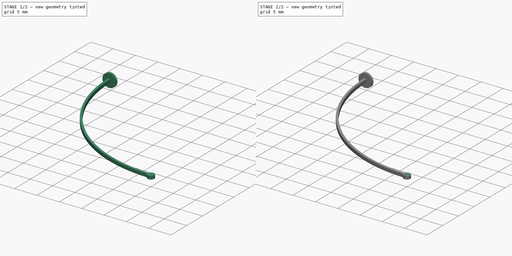
[diagram: build sequence overview — one tinted view per stage of 2, left to right]
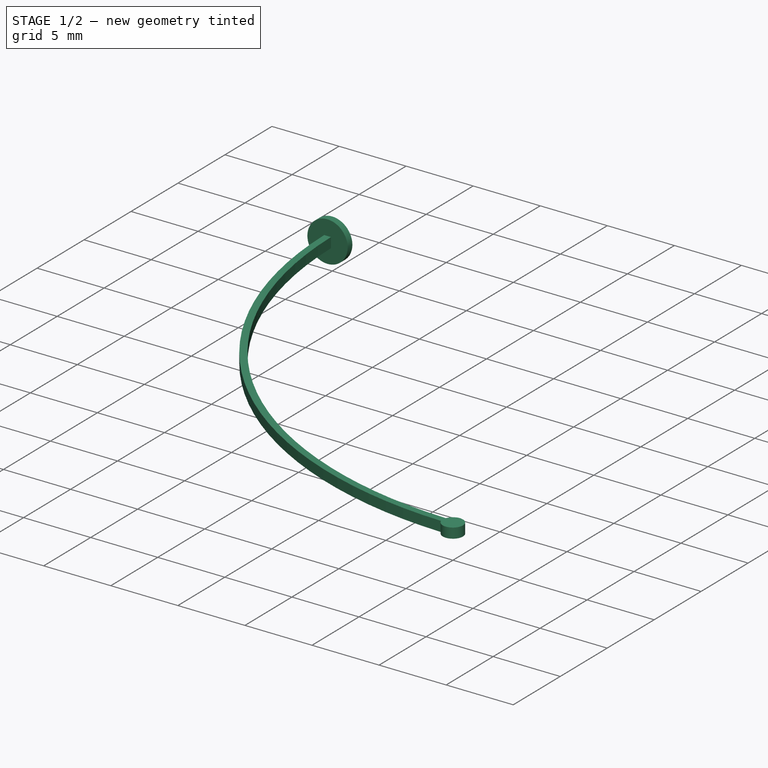
[diagram: stage 1 of 2 — iso view after this stage's code; geometry added in this stage tinted green]
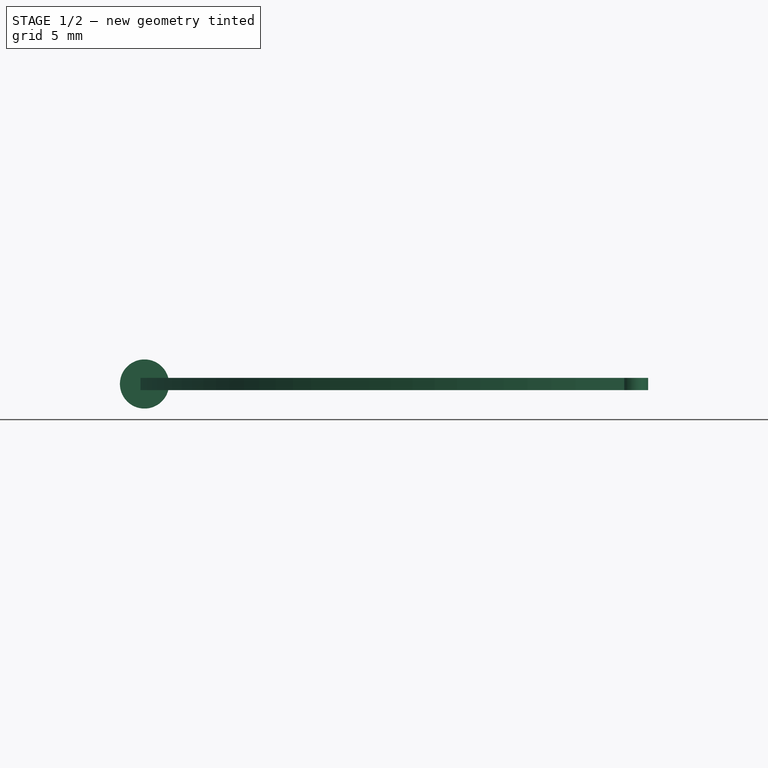
[diagram: stage 1 of 2 — front view after this stage's code; geometry added in this stage tinted green]
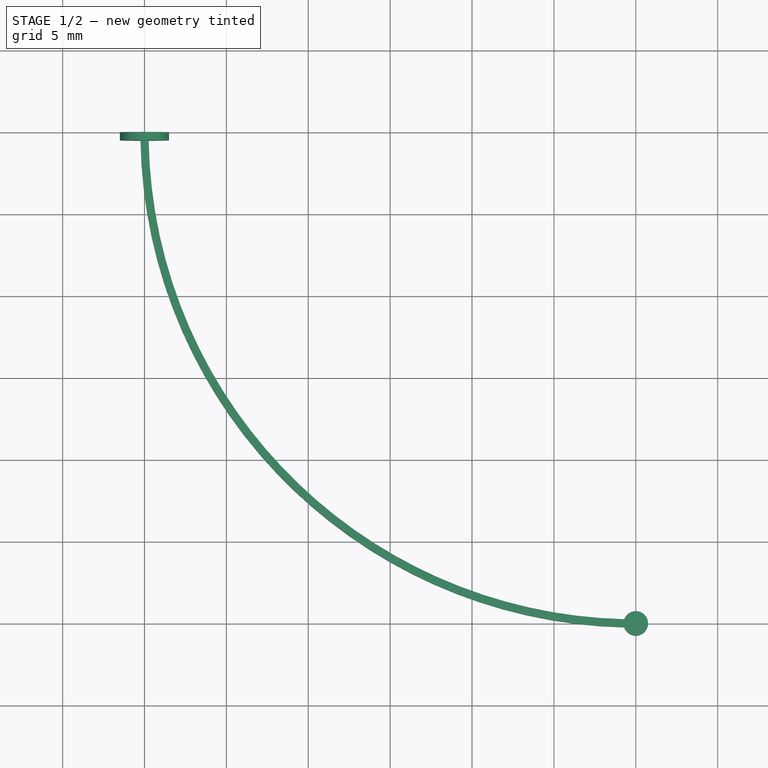
[diagram: stage 1 of 2 — top view after this stage's code; geometry added in this stage tinted green]
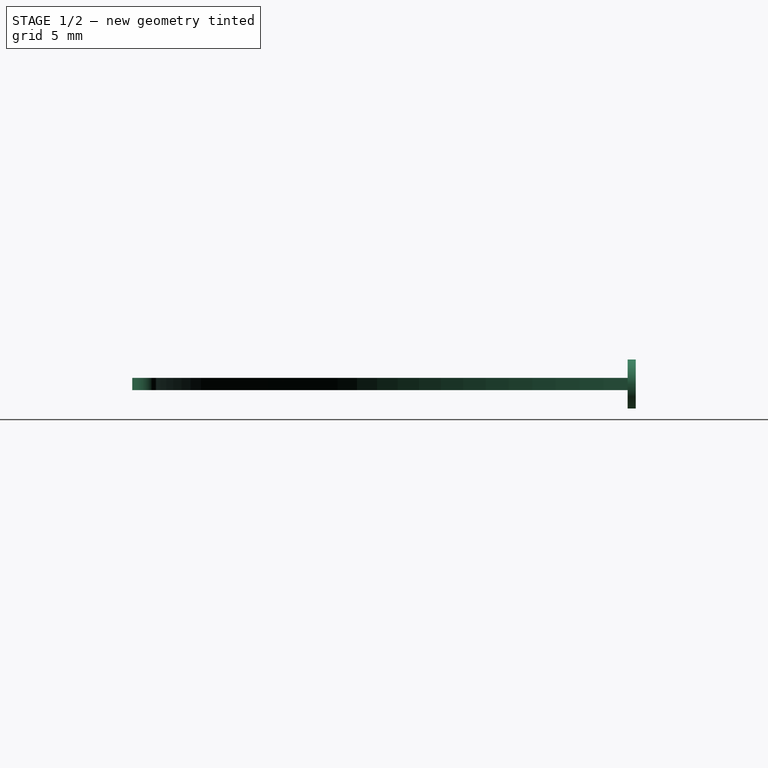
[diagram: stage 1 of 2 — right view after this stage's code; geometry added in this stage tinted green]
FCSTD DOCUMENT  (FreeCAD 0.20R29177 (Git))
Label: sla
License: All rights reserved
LicenseURL: http://en.wikipedia.org/wiki/All_rights_reserved
objects: Sketcher::SketchObject×2, PartDesign::Pad×2, PartDesign::Line×2, Spreadsheet::Sheet×1, PartDesign::Point×1, PartDesign::SubtractiveSphere×1, PartDesign::Body×1
note: 12 computed .brp shape members not serialized (recipe doc carries the construction recipe); baked Part::Feature solids carry a one-line shape summary decoded from their .brp

FEATURE [Spreadsheet::Sheet] Spreadsheet
  cells = A2=Design Parameters; A3=RefLength; B3(RefLength)==1mm; A4=ArmArcRadius; B4(ArmArcRadius)==30 * RefLength; A5=ArmWidth; B5(ArmWidth)==0.5 * RefLength; A6=ArmHeight; B6(ArmHeight)==0.75 * RefLength; A7=TipDatumPlaneOffsetX; B7(TipDatumPlaneOffsetX)==ArmArcRadius; A8=TipDatumPlaneOffsetY; B8(TipDatumPlaneOffsetY)==-ArmArcRadius; A9=ArmBaseDiameter; B9(ArmBaseDiameter)==3 * RefLength; A10=ArmBasePadLength; B10(ArmBasePadLength)==0.5 * RefLength; A11=BallDiameter; B11(BallDiameter)==1.25 * RefLength; A12=BallMargin; B12(BallMargin)==0.01 * RefLength; A13=BallCutoutDiameter; B13(BallCutoutDiameter)==BallDiameter + 2 * BallMargin; A14=BallDepth; B14(BallDepth)==0.25 * BallCutoutDiameter; A15=TipPlateDiameter; B15(TipPlateDiameter)==1.2 * BallDiameter; A16=TipPlateThickness; B16(TipPlateThickness)==ArmHeight; A17=BallCutoutCenterX; B17(BallCutoutCenterX)==ArmArcRadius; A18=BallCutoutCenterY; B18(BallCutoutCenterY)==-ArmArcRadius; A19=BallCutoutCenterZ; B19(BallCutoutCenterZ)==0.5 * ArmHeight + 0.5 * BallCutoutDiameter - BallDepth
FEATURE [Sketcher::SketchObject] Sketch  label="ArmSketch"
  FullyConstrained = true
  MapMode = 5
  Support = -> [XY_Plane]
  expr: Constraints[16] = Spreadsheet.ArmWidth
  expr: Constraints[26] = Spreadsheet.TipPlateDiameter
  expr: Constraints[9] = Spreadsheet.ArmArcRadius
  sketch-geometry (10):
    g0: LineSegment StartX=0 StartY=7.3e-15 StartZ=0 EndX=0 EndY=-30 EndZ=0
    g1: LineSegment StartX=0 StartY=-30 StartZ=0 EndX=30 EndY=-30 EndZ=0
    g2: LineSegment StartX=0 StartY=7.3e-15 StartZ=0 EndX=30 EndY=7.3e-15 EndZ=0
    g3: LineSegment StartX=30 StartY=7.3e-15 StartZ=0 EndX=30 EndY=-30 EndZ=0
    g4: ArcOfCircle CenterX=30 CenterY=7.3e-15 CenterZ=0 NormalX=0 NormalY=0 NormalZ=1 AngleXU=0 Radius=30 StartAngle=3.14159 EndAngle=4.71239
    g5: LineSegment StartX=-0.25 StartY=7.3e-15 StartZ=0 EndX=0 EndY=7.3e-15 EndZ=0
    g6: LineSegment StartX=0 StartY=7.3e-15 StartZ=0 EndX=0.25 EndY=7.3e-15 EndZ=0
    g7: ArcOfCircle CenterX=30 CenterY=7.3e-15 CenterZ=0 NormalX=0 NormalY=0 NormalZ=1 AngleXU=0 Radius=30.25 StartAngle=3.14159 EndAngle=4.68892
    g8: ArcOfCircle CenterX=30 CenterY=7.3e-15 CenterZ=0 NormalX=0 NormalY=0 NormalZ=1 AngleXU=0 Radius=29.75 StartAngle=3.14159 EndAngle=4.68872
    g9: ArcOfCircle CenterX=30 CenterY=-30 CenterZ=0 NormalX=0 NormalY=0 NormalZ=1 AngleXU=0 Radius=0.75 StartAngle=3.46967 EndAngle=9.07313
  constraints (27):
    c: Vertical(g0)
    c: Coincident(g0,g1)
    c: Horizontal(g1)
    c: Horizontal(g2)
    c: Coincident(g2,g3)
    c: Vertical(g3)
    c: Coincident(g3,g1)
    c: Coincident(g4,g2)
    c: Coincident(g4,g1)
    c: Radius(g4) = 30
    c: Horizontal(g5)
    c: Coincident(g5,g6)
    c: Horizontal(g6)
    c: Equal(g5,g6)
    c: Coincident(g7,g2)
    c: Coincident(g8,g7)
    c: DistanceX(g5,g6) = 0.5
    c: Coincident(g2,g0)
    c: Coincident(g4,g0)
    c: Coincident(g0,g5)
    c: Coincident(g5,g-1)
    c: Coincident(g7,g5)
    c: Coincident(g8,g6)
    c: Coincident(g9,g1)
    c: Coincident(g9,g8)
    c: Coincident(g9,g7)
    c: Diameter(g9) = 1.5
FEATURE [PartDesign::Pad] Pad  label="ArmPad"
  Direction = (0,0,1)
  Length = 0.75
  Length2 = 10
  Midplane = true
  Profile = -> Sketch
  ReferenceAxis = -> Sketch [N_Axis]
  Type = 0
  expr: Length = Spreadsheet.ArmHeight
FEATURE [Sketcher::SketchObject] Sketch002  label="ArmBaseSketch"
  FullyConstrained = true
  MapMode = 5
  Placement = pos=(0,0,0) rot=(1,0,0;1.5708rad)
  Support = -> [XZ_Plane]
  expr: Constraints[1] = Spreadsheet.ArmBaseDiameter
  sketch-geometry (1):
    g0: Circle CenterX=0 CenterY=0 CenterZ=0 NormalX=0 NormalY=0 NormalZ=1 AngleXU=0 Radius=1.5
  constraints (2):
    c: Coincident(g0,g-1)
    c: Diameter(g0) = 3
FEATURE [PartDesign::Pad] Pad001  label="ArmBasePad"
  BaseFeature = -> Pad
  Direction = (0,-1,-2e-16)
  Length = 0.5
  Length2 = 10
  Profile = -> Sketch002
  ReferenceAxis = -> Sketch002 [N_Axis]
  Type = 0
  expr: Length = Spreadsheet.ArmBasePadLength
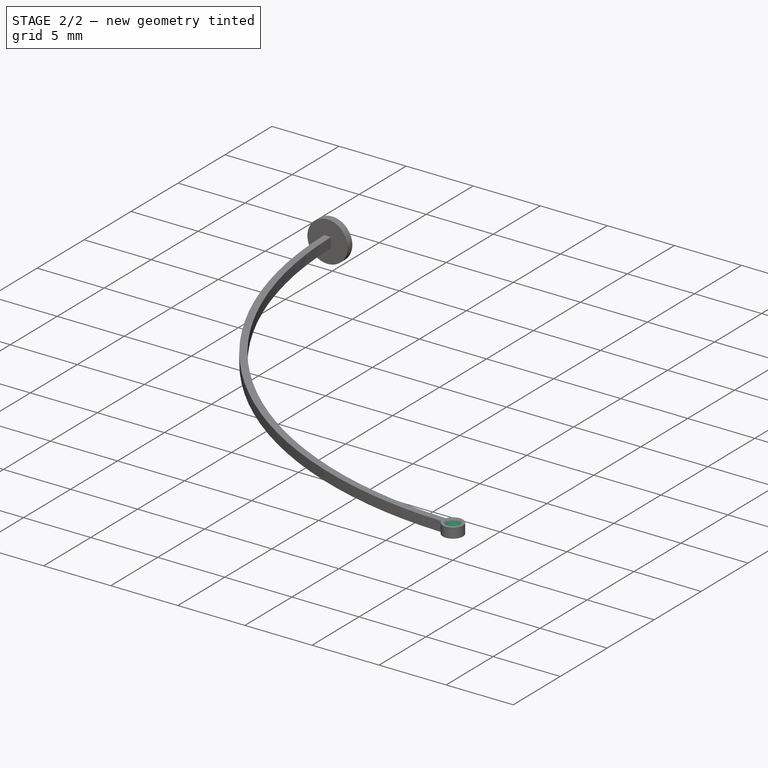
[diagram: stage 2 of 2 — iso view after this stage's code; geometry added in this stage tinted green]
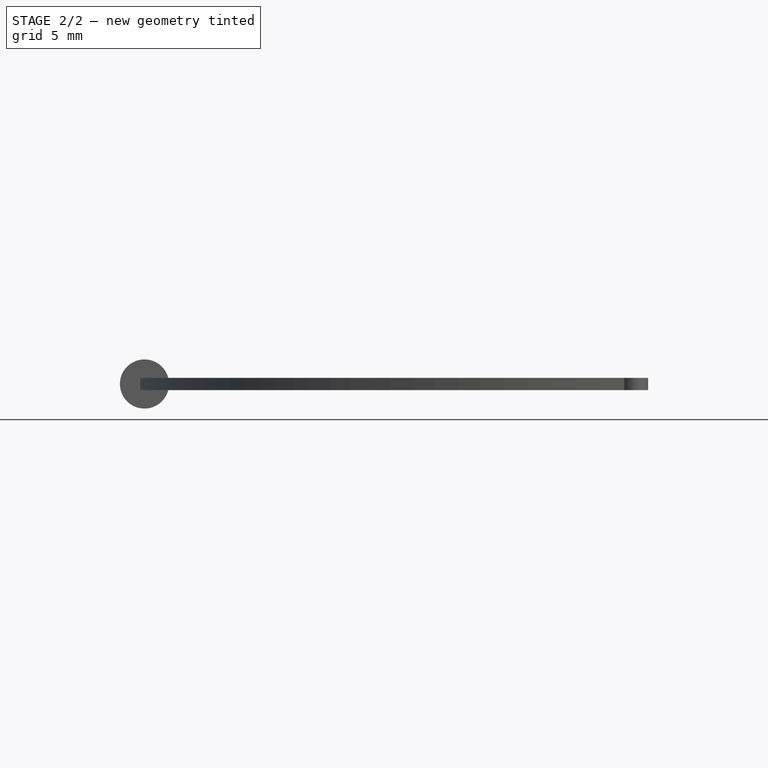
[diagram: stage 2 of 2 — front view after this stage's code; geometry added in this stage tinted green]
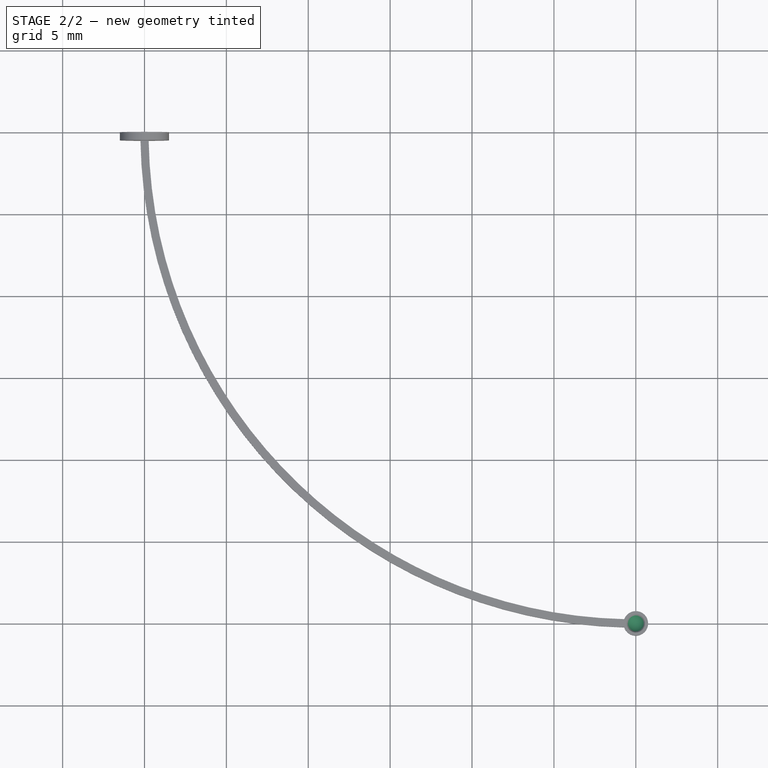
[diagram: stage 2 of 2 — top view after this stage's code; geometry added in this stage tinted green]
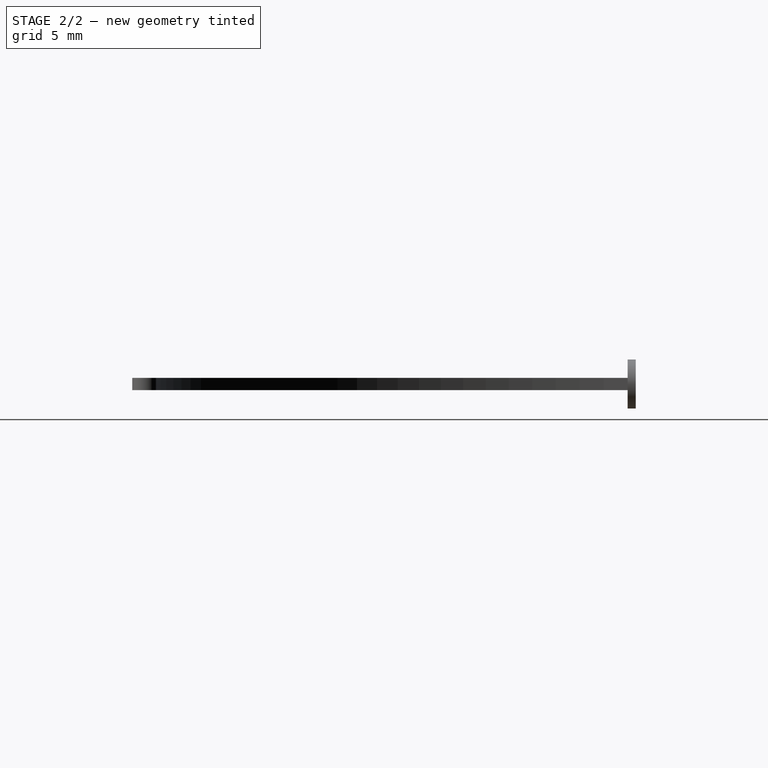
[diagram: stage 2 of 2 — right view after this stage's code; geometry added in this stage tinted green]
FEATURE [PartDesign::Point] DatumPoint  label="BallCutoutDatumPoint"
  AttacherType = Attacher::AttachEnginePoint
  AttachmentOffset = pos=(30,-30,0.6925) rot=(0,0,1;0rad)
  MapMode = 32
  Placement = pos=(30,-30,0.6925) rot=(0,0,1;0rad)
  Support = -> [XY_Plane]
  expr: .AttachmentOffset.Base.x = Spreadsheet.BallCutoutCenterX
  expr: .AttachmentOffset.Base.y = Spreadsheet.BallCutoutCenterY
  expr: .AttachmentOffset.Base.z = Spreadsheet.BallCutoutCenterZ
FEATURE [PartDesign::SubtractiveSphere] Sphere  label="BallCutoutSubtractiveSphere"
  Angle1 = -90
  Angle2 = 90
  Angle3 = 360
  AttacherType = Attacher::AttachEngine3D
  BaseFeature = -> Pad001
  MapMode = 1
  Placement = pos=(30,-30,0.6925) rot=(0,0,1;0rad)
  Radius = 0.635
  Support = -> [DatumPoint]
  expr: Radius = Spreadsheet.BallCutoutDiameter * 0.5
FEATURE [PartDesign::Line] DatumLine  label="HingeAxis1DatumLine"
  AttacherType = Attacher::AttachEngineLine
  Length = 20
  MapMode = 17
  Placement = pos=(30,-30,0.6925) rot=(1,0,0;1.5708rad)
  ResizeMode = 0
  Support = -> [DatumPoint]
FEATURE [PartDesign::Line] DatumLine001  label="HingeAxis2DatumLine"
  AttacherType = Attacher::AttachEngineLine
  Length = 20
  MapMode = 16
  Placement = pos=(30,-30,0.6925) rot=(0.57735,0.57735,0.57735;2.0944rad)
  ResizeMode = 0
  Support = -> [DatumPoint]
FEATURE [PartDesign::Body] Body
  Group = -> [Sketch,Pad,Sketch002,Pad001,DatumPoint,Sphere,DatumLine,DatumLine001]
  Origin = -> Origin
  Tip = -> Sphere
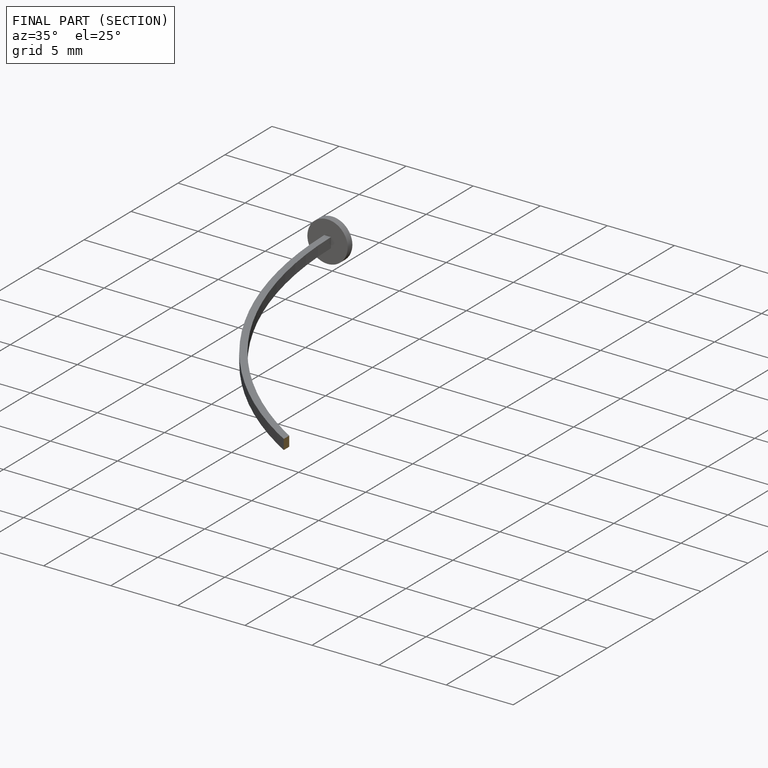
[diagram: finished part — half-section view (interior)]
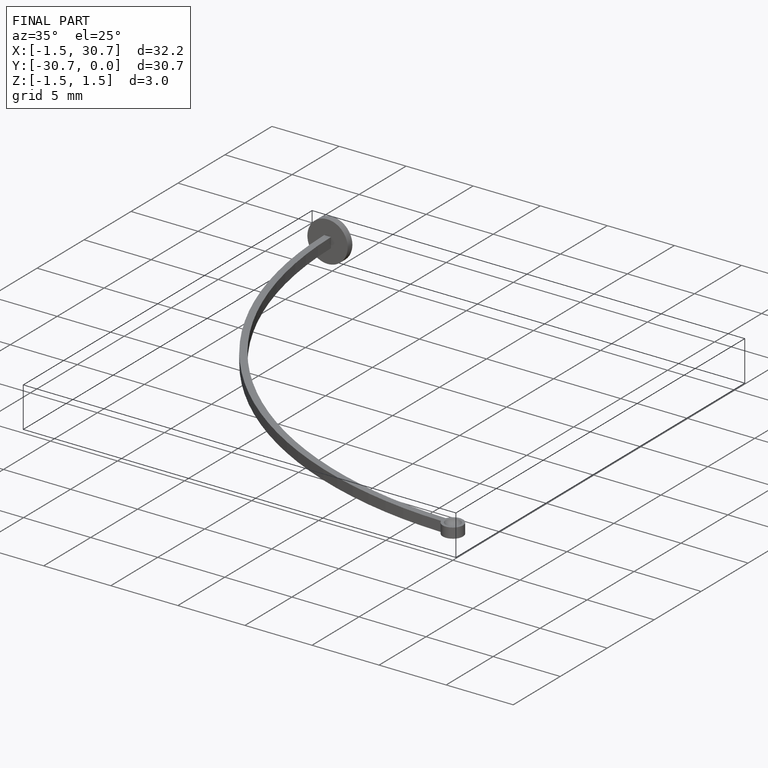
[diagram: finished part — iso view with bounding-box wireframe]
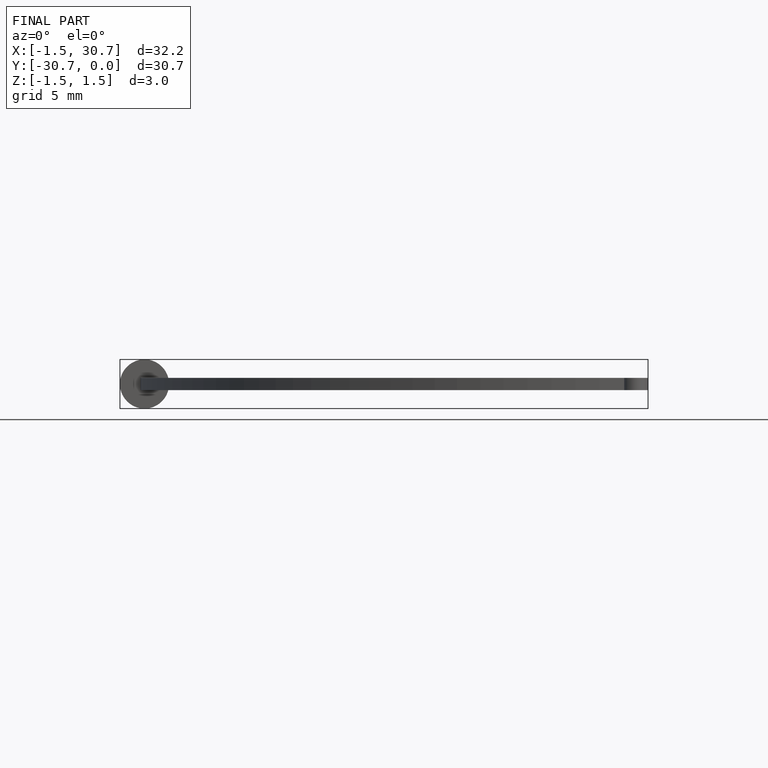
[diagram: finished part — front view with bounding-box wireframe]
